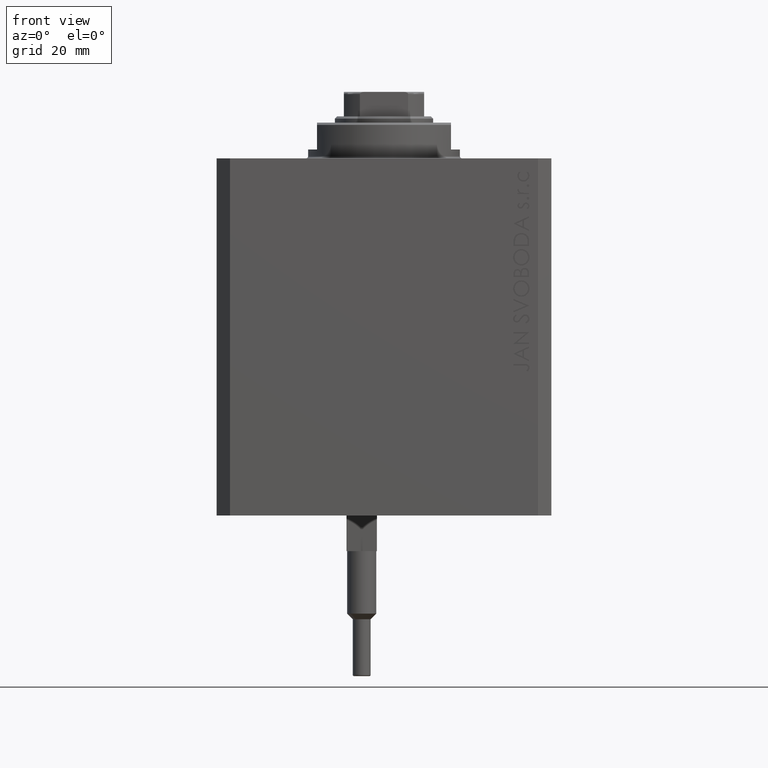
[diagram: clean part render]
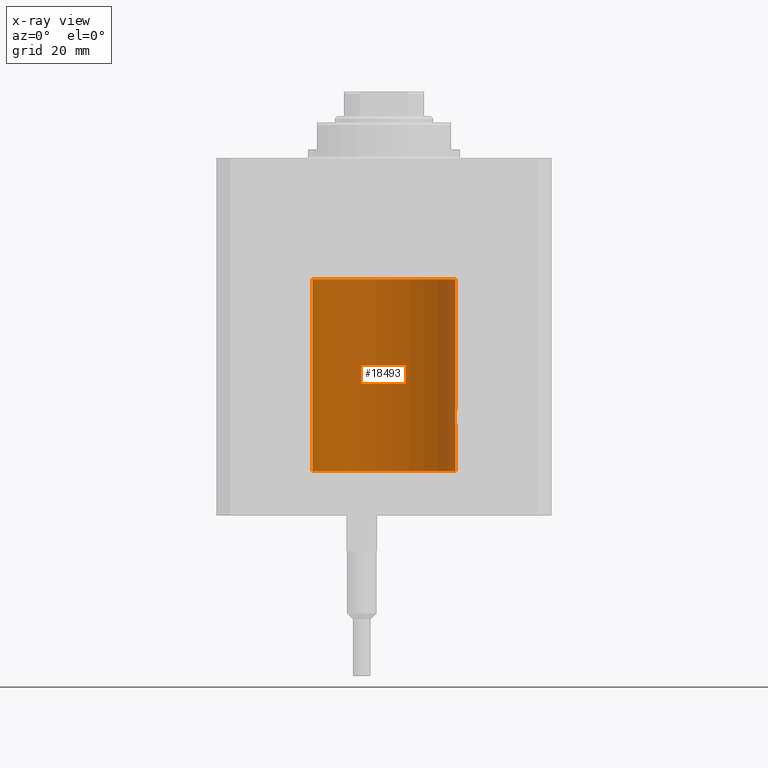
[diagram: x-ray — body ghosted, one internal face saturated and labeled with its STEP entity id]
A machine part, front view, then the same camera in x-ray: the body is ghosted and one INTERNAL B-rep face — a face not visible from any outside direction — is saturated and labeled: STEP entity #18493.
In plain terms, the highlighted cylindrical surface (partial cylindrical patch) has radius 16 mm, axis along (0, 0, 1).
Its self-contained STEP definition (entity closure, byte-faithful):
#868 = CARTESIAN_POINT ( 'NONE',  ( 15.88712192135845491, 1.897869642555083169, -57.35557946728214773 ) ) ;
#992 = VERTEX_POINT ( 'NONE', #37492 ) ;
#1062 = VERTEX_POINT ( 'NONE', #15137 ) ;
#1107 = CARTESIAN_POINT ( 'NONE',  ( 15.87450786638751055, 2.000000000000304201, -57.86943869497294202 ) ) ;
#1348 = CARTESIAN_POINT ( 'NONE',  ( 16.00000000000000000, 0.1305637488590870032, -55.99999999999998579 ) ) ;
#1916 = LINE ( 'NONE', #39064, #28208 ) ;
#2733 = CARTESIAN_POINT ( 'NONE',  ( 15.87450786638750699, 2.000000000000304201, -58.00000000000000000 ) ) ;
#2970 = CARTESIAN_POINT ( 'NONE',  ( 15.90454527605182200, 1.748004143318092840, -59.00616739381551668 ) ) ;
#3210 = ORIENTED_EDGE ( 'NONE', *, *, #30318, .F. ) ;
#4507 = CARTESIAN_POINT ( 'NONE',  ( 15.95379436193629985, 1.219925354616381297, -56.40980009844313514 ) ) ;
#4560 = DIRECTION ( 'NONE',  ( -0.000000000000000000, -0.000000000000000000, 1.000000000000000000 ) ) ;
#4950 = CARTESIAN_POINT ( 'NONE',  ( 15.99836014839681830, 0.2623923436743428317, -59.98699919334817565 ) ) ;
#5216 = CARTESIAN_POINT ( 'NONE',  ( 15.94566414814287469, 1.320819617421912229, -56.49240758272490837 ) ) ;
#5580 = VERTEX_POINT ( 'NONE', #38363 ) ;
#7403 = B_SPLINE_CURVE_WITH_KNOTS ( 'NONE', 3,
 ( #38018, #1107, #41902, #26609, #868, #22953, #16148, #34373, #26373, #5216, #4507, #8854, #12031, #12506, #23428, #37540, #1348, #38255 ),
 .UNSPECIFIED., .F., .F.,
 ( 4, 2, 2, 2, 2, 2, 2, 2, 4 ),
 ( 0.003130250677538710252, 0.003521348247420683433, 0.003912445817302656614, 0.004303543387184629795, 0.004694640957066602976, 0.005085738526948576158, 0.005476836096830549339, 0.005867933666712522520, 0.006259031236594495701 ),
 .UNSPECIFIED. ) ;
#7486 = ORIENTED_EDGE ( 'NONE', *, *, #28162, .F. ) ;
#7726 = EDGE_CURVE ( 'NONE', #992, #43313, #30258, .T. ) ;
#8048 = CIRCLE ( 'NONE', #9596, 16.00000000000000000 ) ;
#8508 = ORIENTED_EDGE ( 'NONE', *, *, #20252, .T. ) ;
#8820 = CARTESIAN_POINT ( 'NONE',  ( 15.98743782203464825, 0.6453927552190282801, -59.89754035852681824 ) ) ;
#8854 = CARTESIAN_POINT ( 'NONE',  ( 15.96887171920781689, 1.003448269354840328, -56.26505182542073413 ) ) ;
#9537 = CARTESIAN_POINT ( 'NONE',  ( 15.99999999999999645, 0.1323149458028785030, -60.00000000000003553 ) ) ;
#9596 = AXIS2_PLACEMENT_3D ( 'NONE', #40616, #18743, #33566 ) ;
#9983 = VERTEX_POINT ( 'NONE', #33575 ) ;
#11284 = CARTESIAN_POINT ( 'NONE',  ( 0.000000000000000000, 0.000000000000000000, -70.09999999999999432 ) ) ;
#11608 = DIRECTION ( 'NONE',  ( 1.000000000000000000, 0.000000000000000000, 0.000000000000000000 ) ) ;
#11794 = CARTESIAN_POINT ( 'NONE',  ( 16.00000000000000000, 0.000000000000000000, -70.09999999999999432 ) ) ;
#11870 = CIRCLE ( 'NONE', #25020, 16.00000000000000000 ) ;
#12031 = CARTESIAN_POINT ( 'NONE',  ( 15.97588373855009536, 0.8864683965309536617, -56.20240655627671345 ) ) ;
#12506 = CARTESIAN_POINT ( 'NONE',  ( 15.98747899434752817, 0.6443623600228939319, -56.10211550510821610 ) ) ;
#14924 = CYLINDRICAL_SURFACE ( 'NONE', #17197, 16.00000000000000000 ) ;
#15137 = CARTESIAN_POINT ( 'NONE',  ( 15.87450786638750699, 2.000000000000304201, -58.00000000000000000 ) ) ;
#16148 = CARTESIAN_POINT ( 'NONE',  ( 15.90582997788426312, 1.734897462761025189, -56.99646332855052577 ) ) ;
#17009 = CARTESIAN_POINT ( 'NONE',  ( -16.00000000000000000, 1.959434878635765131E-15, -70.09999999999999432 ) ) ;
#17197 = AXIS2_PLACEMENT_3D ( 'NONE', #11284, #26104, #33633 ) ;
#17730 = VERTEX_POINT ( 'NONE', #17009 ) ;
#18118 = ORIENTED_EDGE ( 'NONE', *, *, #35950, .T. ) ;
#18493 = ADVANCED_FACE ( 'NONE', ( #25867 ), #14924, .F. ) ;
#18743 = DIRECTION ( 'NONE',  ( 0.000000000000000000, 0.000000000000000000, 1.000000000000000000 ) ) ;
#19751 = CARTESIAN_POINT ( 'NONE',  ( 15.99211620657850830, 0.5182628822511372579, -59.93608344894171580 ) ) ;
#19988 = CARTESIAN_POINT ( 'NONE',  ( 15.96893716441425859, 1.002454028984433698, -59.73556042441212810 ) ) ;
#20160 = EDGE_CURVE ( 'NONE', #5580, #31582, #37836, .T. ) ;
#20252 = EDGE_CURVE ( 'NONE', #31582, #9983, #11870, .T. ) ;
#21415 = CARTESIAN_POINT ( 'NONE',  ( 15.95380611548779015, 1.219810915946573759, -59.59032870701327766 ) ) ;
#22741 = B_SPLINE_CURVE_WITH_KNOTS ( 'NONE', 3,
 ( #42101, #9537, #4950, #19751, #8820, #23632, #19988, #21415, #32578, #47637, #2970, #36231, #39640, #2733 ),
 .UNSPECIFIED., .F., .F.,
 ( 4, 2, 2, 2, 2, 2, 4 ),
 ( 1.233258403080811936E-18, 0.0003912813346923395947, 0.0007825626693846778883, 0.001173844004077016561, 0.001565125338769355343, 0.002347688008154032689, 0.003130250677538710252 ),
 .UNSPECIFIED. ) ;
#22785 = ORIENTED_EDGE ( 'NONE', *, *, #7726, .T. ) ;
#22953 = CARTESIAN_POINT ( 'NONE',  ( 15.89878974374255449, 1.797508500259983100, -57.11334888788567099 ) ) ;
#23428 = CARTESIAN_POINT ( 'NONE',  ( 15.99207203775707065, 0.5197027266689117075, -56.06427960618061945 ) ) ;
#23632 = CARTESIAN_POINT ( 'NONE',  ( 15.97582125337101644, 0.8876008124445635694, -59.79704090617750722 ) ) ;
#25020 = AXIS2_PLACEMENT_3D ( 'NONE', #30072, #44870, #11608 ) ;
#25642 = DIRECTION ( 'NONE',  ( -0.000000000000000000, -0.000000000000000000, 1.000000000000000000 ) ) ;
#25867 = FACE_OUTER_BOUND ( 'NONE', #44022, .T. ) ;
#26104 = DIRECTION ( 'NONE',  ( -0.000000000000000000, -0.000000000000000000, 1.000000000000000000 ) ) ;
#26373 = CARTESIAN_POINT ( 'NONE',  ( 15.92911104305801828, 1.507378839264609027, -56.67893664295412037 ) ) ;
#26609 = CARTESIAN_POINT ( 'NONE',  ( 15.88249567060696243, 1.935716055827881199, -57.48027816021619429 ) ) ;
#27108 = VECTOR ( 'NONE', #25642, 1000.000000000000000 ) ;
#28162 = EDGE_CURVE ( 'NONE', #992, #17730, #8048, .T. ) ;
#28208 = VECTOR ( 'NONE', #35878, 1000.000000000000000 ) ;
#28971 = CARTESIAN_POINT ( 'NONE',  ( 16.00000000000000000, 0.000000000000000000, -27.10000000000000142 ) ) ;
#30072 = CARTESIAN_POINT ( 'NONE',  ( 0.000000000000000000, 0.000000000000000000, -27.10000000000000142 ) ) ;
#30258 = LINE ( 'NONE', #11794, #27108 ) ;
#30318 = EDGE_CURVE ( 'NONE', #17730, #9983, #1916, .T. ) ;
#31582 = VERTEX_POINT ( 'NONE', #28971 ) ;
#32578 = CARTESIAN_POINT ( 'NONE',  ( 15.94550883254178686, 1.322613426523516988, -59.50588495029015235 ) ) ;
#33566 = DIRECTION ( 'NONE',  ( 1.000000000000000000, 0.000000000000000000, 0.000000000000000000 ) ) ;
#33575 = CARTESIAN_POINT ( 'NONE',  ( -16.00000000000000000, 1.959434878635765131E-15, -27.10000000000000142 ) ) ;
#33633 = DIRECTION ( 'NONE',  ( 1.000000000000000000, 0.000000000000000000, 0.000000000000000000 ) ) ;
#34373 = CARTESIAN_POINT ( 'NONE',  ( 15.92095407913750726, 1.590131347295337116, -56.77998469042918828 ) ) ;
#35210 = ORIENTED_EDGE ( 'NONE', *, *, #20160, .T. ) ;
#35878 = DIRECTION ( 'NONE',  ( -0.000000000000000000, -0.000000000000000000, 1.000000000000000000 ) ) ;
#35950 = EDGE_CURVE ( 'NONE', #1062, #5580, #7403, .T. ) ;
#36231 = CARTESIAN_POINT ( 'NONE',  ( 15.88135773388169447, 1.947448446433286851, -58.52472455433248655 ) ) ;
#36656 = VECTOR ( 'NONE', #4560, 1000.000000000000000 ) ;
#37492 = CARTESIAN_POINT ( 'NONE',  ( 16.00000000000000000, 0.000000000000000000, -70.09999999999999432 ) ) ;
#37540 = CARTESIAN_POINT ( 'NONE',  ( 15.99834953062734222, 0.2631943783489377742, -56.01308452963880313 ) ) ;
#37836 = LINE ( 'NONE', #41483, #36656 ) ;
#38018 = CARTESIAN_POINT ( 'NONE',  ( 15.87450786638750699, 2.000000000000304201, -58.00000000000000000 ) ) ;
#38255 = CARTESIAN_POINT ( 'NONE',  ( 16.00000000000000000, -2.739635037742051899E-23, -56.00000000000000000 ) ) ;
#38363 = CARTESIAN_POINT ( 'NONE',  ( 16.00000000000000000, -2.739635037742051899E-23, -56.00000000000000000 ) ) ;
#39064 = CARTESIAN_POINT ( 'NONE',  ( -16.00000000000000000, 1.959434878635765131E-15, -70.09999999999999432 ) ) ;
#39640 = CARTESIAN_POINT ( 'NONE',  ( 15.87450786638751410, 2.000000000000305089, -58.26124530359818721 ) ) ;
#40616 = CARTESIAN_POINT ( 'NONE',  ( 0.000000000000000000, 0.000000000000000000, -70.09999999999999432 ) ) ;
#41483 = CARTESIAN_POINT ( 'NONE',  ( 16.00000000000000000, 0.000000000000000000, -70.09999999999999432 ) ) ;
#41902 = CARTESIAN_POINT ( 'NONE',  ( 15.87617168140110380, 1.986916736634008140, -57.73680934434935352 ) ) ;
#42101 = CARTESIAN_POINT ( 'NONE',  ( 16.00000000000000000, -1.269217749118193288E-15, -60.00000000000000711 ) ) ;
#42137 = CARTESIAN_POINT ( 'NONE',  ( 16.00000000000000000, -1.269217749118193288E-15, -60.00000000000000711 ) ) ;
#43313 = VERTEX_POINT ( 'NONE', #42137 ) ;
#43512 = ORIENTED_EDGE ( 'NONE', *, *, #45324, .T. ) ;
#44022 = EDGE_LOOP ( 'NONE', ( #3210, #7486, #22785, #43512, #18118, #35210, #8508 ) ) ;
#44870 = DIRECTION ( 'NONE',  ( 0.000000000000000000, 0.000000000000000000, 1.000000000000000000 ) ) ;
#45324 = EDGE_CURVE ( 'NONE', #43313, #1062, #22741, .T. ) ;
#47637 = CARTESIAN_POINT ( 'NONE',  ( 15.92096875784782739, 1.599058044721139105, -59.22922593843968286 ) ) ;